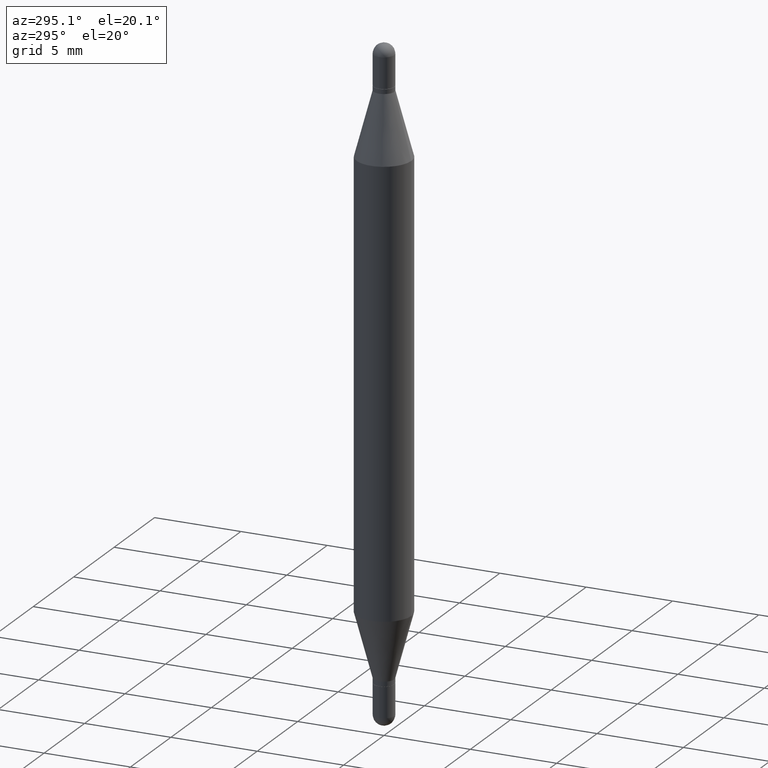
[diagram: clean part render]
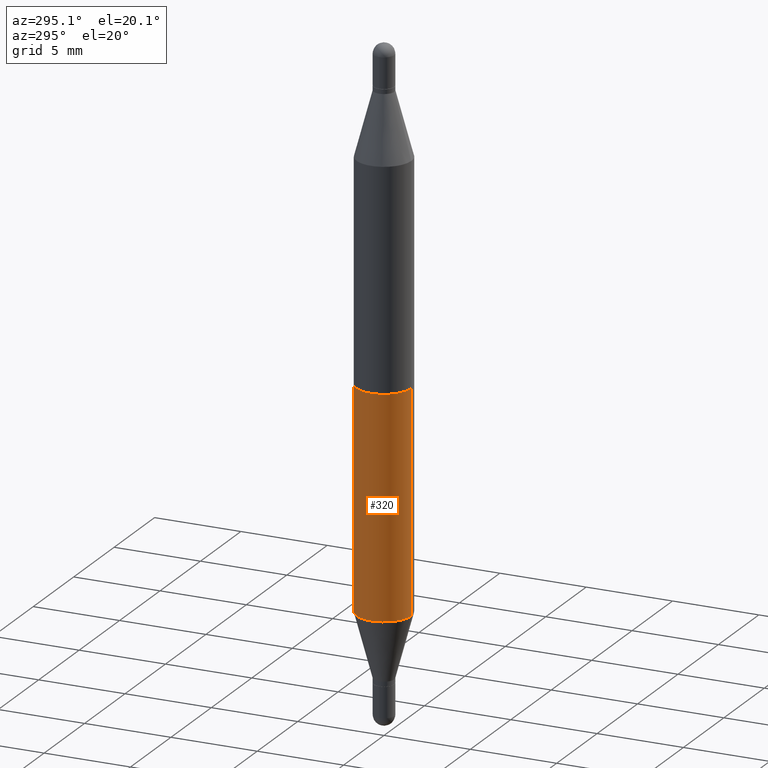
[diagram: same view with one face highlighted and labeled with its STEP entity id]
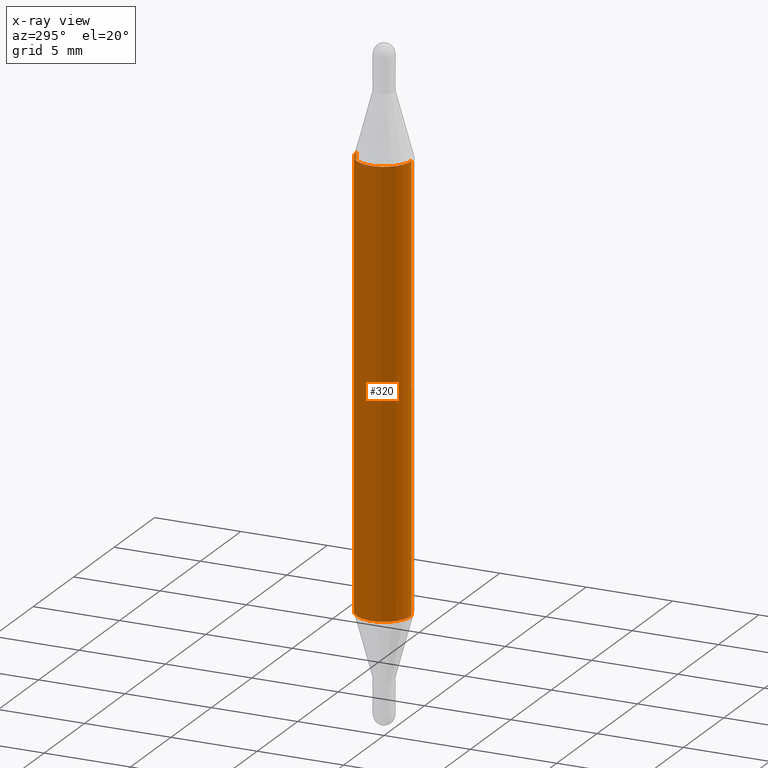
[diagram: x-ray of the same camera — body ghosted, the highlighted face saturated]
A machine part, auxiliary view. The second image highlights one B-rep face of the part: STEP entity #320.
The next image is the same camera in x-ray: the body ghosted, the highlighted face saturated — about 0% of this face is hidden behind the body in this view.
In plain terms, the highlighted cylindrical surface (edge-blend (fillet) strip) has radius 1.5875 mm, axis along (-0, -0, -1).
Its self-contained STEP definition (entity closure, byte-faithful):
#14 = ORIENTED_EDGE ( 'NONE', *, *, #145, .F. ) ;
#37 = AXIS2_PLACEMENT_3D ( 'NONE', #922, #223, #636 ) ;
#77 = CIRCLE ( 'NONE', #686, 0.06250000000000000000 ) ;
#118 = FACE_OUTER_BOUND ( 'NONE', #1044, .T. ) ;
#131 = CARTESIAN_POINT ( 'NONE',  ( 0.000000000000000000, -5.228321854365732350E-15, -1.500000000000000444 ) ) ;
#145 = EDGE_CURVE ( 'NONE', #581, #884, #792, .T. ) ;
#160 = CARTESIAN_POINT ( 'NONE',  ( -4.364351673553610517E-16, -0.06250000000000087430, -0.2497365840355651456 ) ) ;
#202 = DIRECTION ( 'NONE',  ( -2.445571525097176627E-29, 3.491334239514706873E-15, 1.000000000000000000 ) ) ;
#212 = CARTESIAN_POINT ( 'NONE',  ( -4.364351673553610517E-16, -0.06250000000000435763, -1.250263415964434799 ) ) ;
#223 = DIRECTION ( 'NONE',  ( 2.445571525097176627E-29, 3.479761566306266964E-15, 1.000000000000000000 ) ) ;
#278 = DIRECTION ( 'NONE',  ( -2.445571525097176627E-29, -3.479761566306266964E-15, -1.000000000000000000 ) ) ;
#291 = DIRECTION ( 'NONE',  ( -6.982962677686265922E-15, -1.000000000000000000, 4.370956789862821150E-15 ) ) ;
#298 = DIRECTION ( 'NONE',  ( -2.445571525097176627E-29, -3.479761566306266964E-15, -1.000000000000000000 ) ) ;
#313 = EDGE_CURVE ( 'NONE', #884, #939, #354, .T. ) ;
#320 = ADVANCED_FACE ( 'NONE', ( #118 ), #375, .T. ) ;
#341 = ORIENTED_EDGE ( 'NONE', *, *, #712, .T. ) ;
#354 = LINE ( 'NONE', #450, #944 ) ;
#361 = LINE ( 'NONE', #958, #762 ) ;
#375 = CYLINDRICAL_SURFACE ( 'NONE', #1019, 0.06250000000000000000 ) ;
#450 = CARTESIAN_POINT ( 'NONE',  ( -4.364351673553916201E-16, -0.06250000000000521805, -1.500000000000000222 ) ) ;
#538 = DIRECTION ( 'NONE',  ( -2.445571525097176627E-29, -3.479761566306266964E-15, -1.000000000000000000 ) ) ;
#581 = VERTEX_POINT ( 'NONE', #732 ) ;
#636 = DIRECTION ( 'NONE',  ( -6.982962677686265922E-15, -1.000000000000000000, 3.278217592397115862E-15 ) ) ;
#686 = AXIS2_PLACEMENT_3D ( 'NONE', #1053, #202, #291 ) ;
#712 = EDGE_CURVE ( 'NONE', #581, #988, #361, .T. ) ;
#713 = DIRECTION ( 'NONE',  ( -6.982962677686265922E-15, -1.000000000000000000, 4.370956789862821150E-15 ) ) ;
#732 = CARTESIAN_POINT ( 'NONE',  ( 4.287811248607512417E-16, 0.06249999999999911876, -0.2497365840355655620 ) ) ;
#762 = VECTOR ( 'NONE', #298, 39.37007874015748143 ) ;
#765 = EDGE_CURVE ( 'NONE', #988, #939, #77, .T. ) ;
#792 = CIRCLE ( 'NONE', #37, 0.06250000000000000000 ) ;
#884 = VERTEX_POINT ( 'NONE', #160 ) ;
#904 = ORIENTED_EDGE ( 'NONE', *, *, #765, .T. ) ;
#922 = CARTESIAN_POINT ( 'NONE',  ( 3.057608608953349206E-29, -8.777032717339053700E-16, -0.2497365840355653399 ) ) ;
#939 = VERTEX_POINT ( 'NONE', #212 ) ;
#944 = VECTOR ( 'NONE', #278, 39.37007874015748143 ) ;
#958 = CARTESIAN_POINT ( 'NONE',  ( 4.287811248607206733E-16, 0.06249999999999477501, -1.500000000000000666 ) ) ;
#988 = VERTEX_POINT ( 'NONE', #1002 ) ;
#1002 = CARTESIAN_POINT ( 'NONE',  ( 4.287811248607390637E-16, 0.06249999999999563544, -1.250263415964435243 ) ) ;
#1019 = AXIS2_PLACEMENT_3D ( 'NONE', #131, #538, #713 ) ;
#1025 = ORIENTED_EDGE ( 'NONE', *, *, #313, .F. ) ;
#1044 = EDGE_LOOP ( 'NONE', ( #14, #341, #904, #1025 ) ) ;
#1053 = CARTESIAN_POINT ( 'NONE',  ( 3.057608608953349206E-29, -4.365087472569250311E-15, -1.250263415964435021 ) ) ;